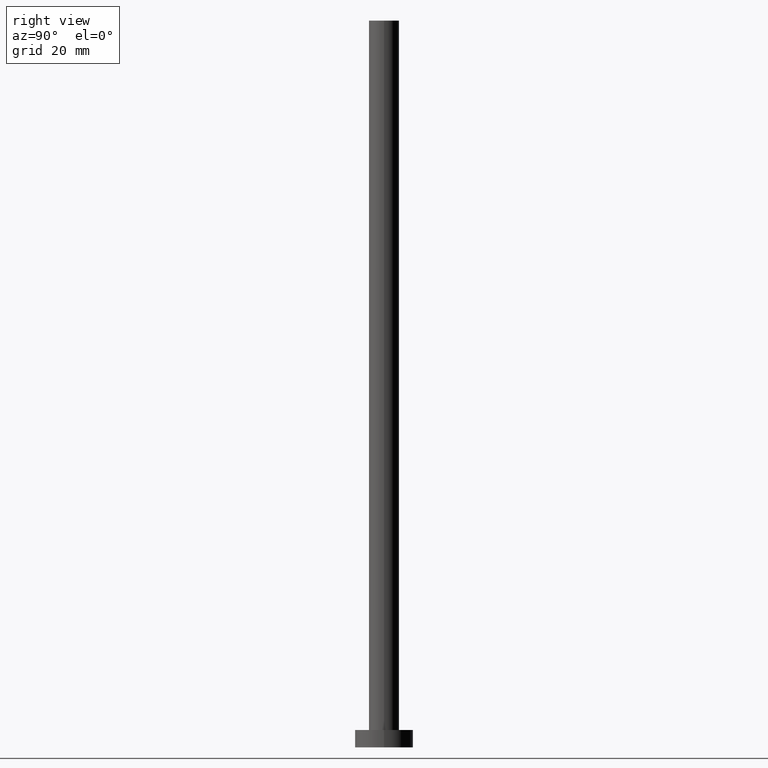
[diagram: clean part render]
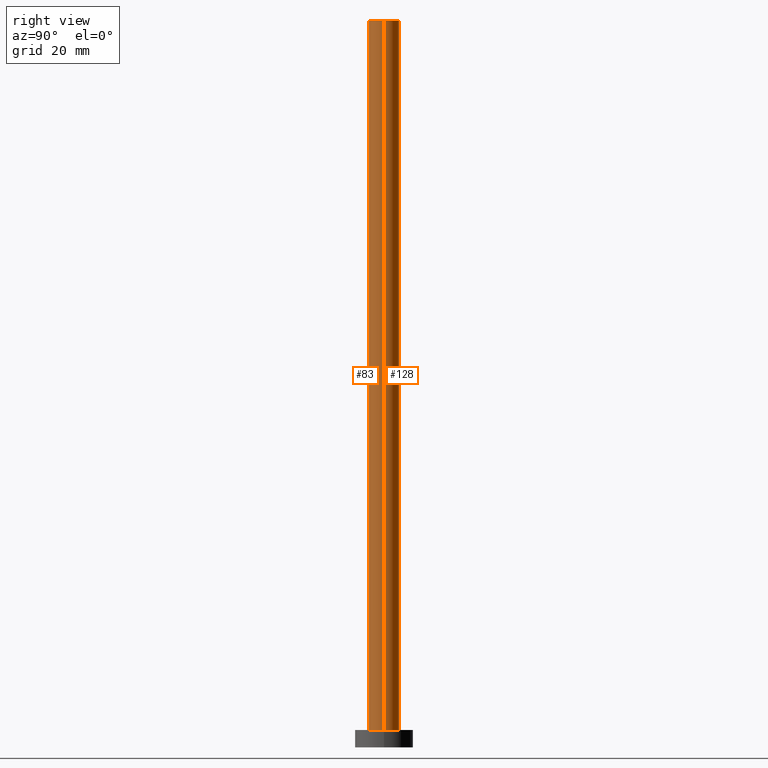
[diagram: same view with one multi-face feature highlighted, each face labeled with its STEP entity id]
A machine part, right view. The highlighted faces form ONE feature: a constant-radius fillet chain: 2 tangent blend faces with common blend radius 2.6 mm. The faces share edges in the B-rep.
Their STEP definitions:
[1] entity #128 (Cylinder):
#12 = ORIENTED_EDGE ( 'NONE', *, *, #55, .F. ) ;
#24 = VERTEX_POINT ( 'NONE', #159 ) ;
#28 = VERTEX_POINT ( 'NONE', #54 ) ;
#35 = VECTOR ( 'NONE', #167, 1000.000000000000000 ) ;
#36 = LINE ( 'NONE', #39, #129 ) ;
#39 = CARTESIAN_POINT ( 'NONE',  ( -2.600000000000000089, 0.000000000000000000, 125.0000000000000000 ) ) ;
#43 = FACE_OUTER_BOUND ( 'NONE', #158, .T. ) ;
#54 = CARTESIAN_POINT ( 'NONE',  ( -2.600000000000000089, 0.000000000000000000, 125.0000000000000000 ) ) ;
#55 = EDGE_CURVE ( 'NONE', #104, #28, #238, .T. ) ;
#59 = EDGE_CURVE ( 'NONE', #28, #135, #36, .T. ) ;
#72 = DIRECTION ( 'NONE',  ( 0.000000000000000000, 0.000000000000000000, 1.000000000000000000 ) ) ;
#81 = ORIENTED_EDGE ( 'NONE', *, *, #178, .T. ) ;
#102 = LINE ( 'NONE', #225, #35 ) ;
#104 = VERTEX_POINT ( 'NONE', #202 ) ;
#113 = DIRECTION ( 'NONE',  ( 1.000000000000000000, 0.000000000000000000, 0.000000000000000000 ) ) ;
#125 = DIRECTION ( 'NONE',  ( -0.000000000000000000, -0.000000000000000000, -1.000000000000000000 ) ) ;
#127 = CYLINDRICAL_SURFACE ( 'NONE', #211, 2.600000000000000089 ) ;
#128 = ADVANCED_FACE ( 'NONE', ( #43 ), #127, .T. ) ;
#129 = VECTOR ( 'NONE', #125, 1000.000000000000000 ) ;
#130 = ORIENTED_EDGE ( 'NONE', *, *, #59, .F. ) ;
#135 = VERTEX_POINT ( 'NONE', #224 ) ;
#141 = CARTESIAN_POINT ( 'NONE',  ( 0.000000000000000000, 0.000000000000000000, 3.000000000000000000 ) ) ;
#143 = DIRECTION ( 'NONE',  ( 0.000000000000000000, 0.000000000000000000, 1.000000000000000000 ) ) ;
#145 = CARTESIAN_POINT ( 'NONE',  ( 0.000000000000000000, 0.000000000000000000, 125.0000000000000000 ) ) ;
#149 = DIRECTION ( 'NONE',  ( -1.000000000000000000, 0.000000000000000000, 0.000000000000000000 ) ) ;
#157 = AXIS2_PLACEMENT_3D ( 'NONE', #141, #143, #113 ) ;
#158 = EDGE_LOOP ( 'NONE', ( #12, #81, #168, #130 ) ) ;
#159 = CARTESIAN_POINT ( 'NONE',  ( 2.600000000000000089, 3.184081677783117698E-16, 3.000000000000000000 ) ) ;
#167 = DIRECTION ( 'NONE',  ( -0.000000000000000000, -0.000000000000000000, -1.000000000000000000 ) ) ;
#168 = ORIENTED_EDGE ( 'NONE', *, *, #252, .T. ) ;
#169 = DIRECTION ( 'NONE',  ( -0.000000000000000000, -0.000000000000000000, -1.000000000000000000 ) ) ;
#178 = EDGE_CURVE ( 'NONE', #104, #24, #102, .T. ) ;
#179 = CIRCLE ( 'NONE', #157, 2.600000000000000089 ) ;
#196 = AXIS2_PLACEMENT_3D ( 'NONE', #145, #72, #220 ) ;
#202 = CARTESIAN_POINT ( 'NONE',  ( 2.600000000000000089, 3.184081677783117698E-16, 125.0000000000000000 ) ) ;
#211 = AXIS2_PLACEMENT_3D ( 'NONE', #242, #169, #149 ) ;
#220 = DIRECTION ( 'NONE',  ( 1.000000000000000000, 0.000000000000000000, 0.000000000000000000 ) ) ;
#224 = CARTESIAN_POINT ( 'NONE',  ( -2.600000000000000089, 0.000000000000000000, 3.000000000000000000 ) ) ;
#225 = CARTESIAN_POINT ( 'NONE',  ( 2.600000000000000089, 3.184081677783117698E-16, 125.0000000000000000 ) ) ;
#238 = CIRCLE ( 'NONE', #196, 2.600000000000000089 ) ;
#242 = CARTESIAN_POINT ( 'NONE',  ( 0.000000000000000000, 0.000000000000000000, 125.0000000000000000 ) ) ;
#252 = EDGE_CURVE ( 'NONE', #24, #135, #179, .T. ) ;
[2] entity #83 (Cylinder):
#9 = DIRECTION ( 'NONE',  ( -1.000000000000000000, 0.000000000000000000, 0.000000000000000000 ) ) ;
#14 = CIRCLE ( 'NONE', #80, 2.600000000000000089 ) ;
#21 = FACE_OUTER_BOUND ( 'NONE', #191, .T. ) ;
#24 = VERTEX_POINT ( 'NONE', #159 ) ;
#28 = VERTEX_POINT ( 'NONE', #54 ) ;
#35 = VECTOR ( 'NONE', #167, 1000.000000000000000 ) ;
#36 = LINE ( 'NONE', #39, #129 ) ;
#39 = CARTESIAN_POINT ( 'NONE',  ( -2.600000000000000089, 0.000000000000000000, 125.0000000000000000 ) ) ;
#48 = ORIENTED_EDGE ( 'NONE', *, *, #59, .T. ) ;
#54 = CARTESIAN_POINT ( 'NONE',  ( -2.600000000000000089, 0.000000000000000000, 125.0000000000000000 ) ) ;
#56 = DIRECTION ( 'NONE',  ( 0.000000000000000000, 0.000000000000000000, 1.000000000000000000 ) ) ;
#59 = EDGE_CURVE ( 'NONE', #28, #135, #36, .T. ) ;
#63 = ORIENTED_EDGE ( 'NONE', *, *, #178, .F. ) ;
#79 = CYLINDRICAL_SURFACE ( 'NONE', #161, 2.600000000000000089 ) ;
#80 = AXIS2_PLACEMENT_3D ( 'NONE', #241, #56, #148 ) ;
#83 = ADVANCED_FACE ( 'NONE', ( #21 ), #79, .T. ) ;
#89 = DIRECTION ( 'NONE',  ( 0.000000000000000000, 0.000000000000000000, 1.000000000000000000 ) ) ;
#102 = LINE ( 'NONE', #225, #35 ) ;
#103 = CARTESIAN_POINT ( 'NONE',  ( 0.000000000000000000, 0.000000000000000000, 125.0000000000000000 ) ) ;
#104 = VERTEX_POINT ( 'NONE', #202 ) ;
#114 = AXIS2_PLACEMENT_3D ( 'NONE', #172, #89, #153 ) ;
#125 = DIRECTION ( 'NONE',  ( -0.000000000000000000, -0.000000000000000000, -1.000000000000000000 ) ) ;
#129 = VECTOR ( 'NONE', #125, 1000.000000000000000 ) ;
#135 = VERTEX_POINT ( 'NONE', #224 ) ;
#138 = EDGE_CURVE ( 'NONE', #135, #24, #244, .T. ) ;
#148 = DIRECTION ( 'NONE',  ( 1.000000000000000000, 0.000000000000000000, 0.000000000000000000 ) ) ;
#153 = DIRECTION ( 'NONE',  ( 1.000000000000000000, 0.000000000000000000, 0.000000000000000000 ) ) ;
#159 = CARTESIAN_POINT ( 'NONE',  ( 2.600000000000000089, 3.184081677783117698E-16, 3.000000000000000000 ) ) ;
#161 = AXIS2_PLACEMENT_3D ( 'NONE', #103, #164, #9 ) ;
#164 = DIRECTION ( 'NONE',  ( -0.000000000000000000, -0.000000000000000000, -1.000000000000000000 ) ) ;
#167 = DIRECTION ( 'NONE',  ( -0.000000000000000000, -0.000000000000000000, -1.000000000000000000 ) ) ;
#172 = CARTESIAN_POINT ( 'NONE',  ( 0.000000000000000000, 0.000000000000000000, 3.000000000000000000 ) ) ;
#178 = EDGE_CURVE ( 'NONE', #104, #24, #102, .T. ) ;
#187 = ORIENTED_EDGE ( 'NONE', *, *, #138, .T. ) ;
#191 = EDGE_LOOP ( 'NONE', ( #63, #253, #48, #187 ) ) ;
#202 = CARTESIAN_POINT ( 'NONE',  ( 2.600000000000000089, 3.184081677783117698E-16, 125.0000000000000000 ) ) ;
#224 = CARTESIAN_POINT ( 'NONE',  ( -2.600000000000000089, 0.000000000000000000, 3.000000000000000000 ) ) ;
#225 = CARTESIAN_POINT ( 'NONE',  ( 2.600000000000000089, 3.184081677783117698E-16, 125.0000000000000000 ) ) ;
#241 = CARTESIAN_POINT ( 'NONE',  ( 0.000000000000000000, 0.000000000000000000, 125.0000000000000000 ) ) ;
#244 = CIRCLE ( 'NONE', #114, 2.600000000000000089 ) ;
#248 = EDGE_CURVE ( 'NONE', #28, #104, #14, .T. ) ;
#253 = ORIENTED_EDGE ( 'NONE', *, *, #248, .F. ) ;